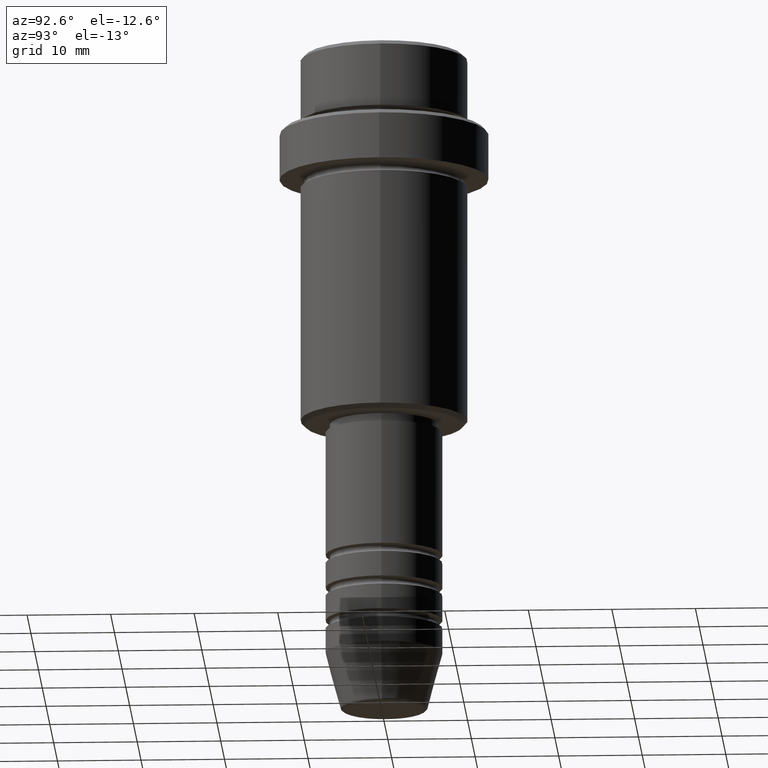
[diagram: clean part render]
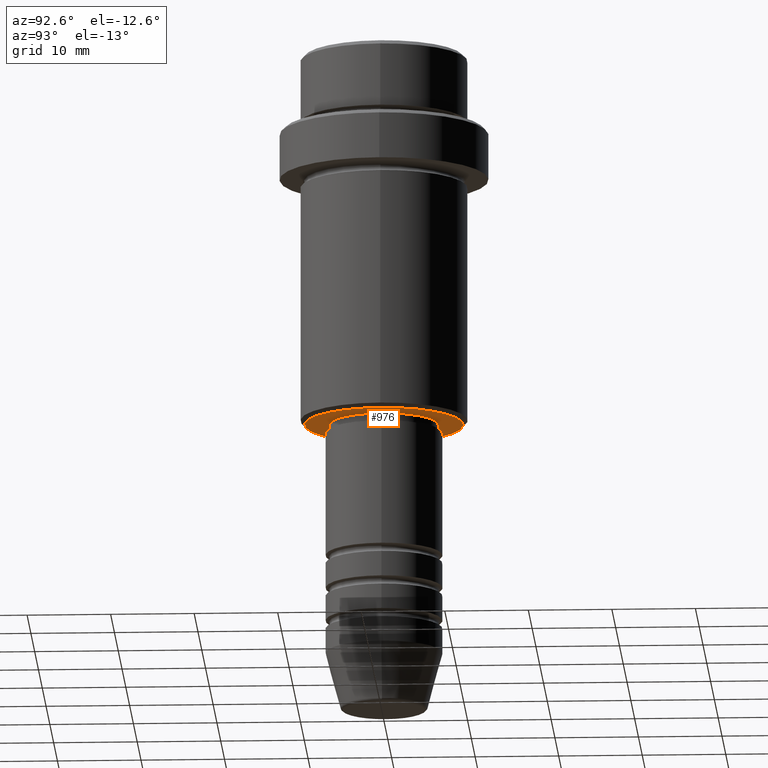
[diagram: same view with one face highlighted and labeled with its STEP entity id]
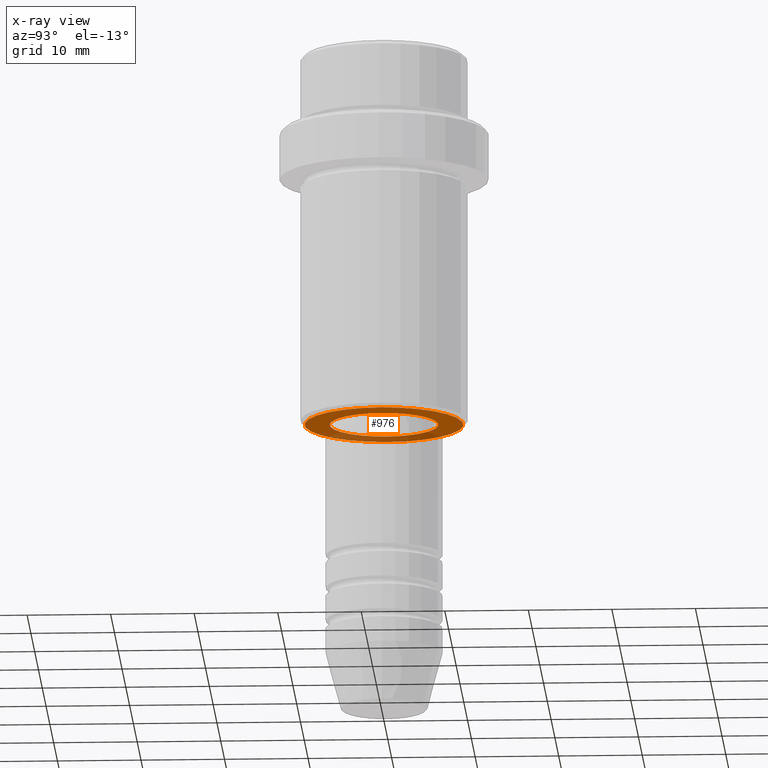
[diagram: x-ray of the same camera — body ghosted, the highlighted face saturated]
A machine part, auxiliary view. The second image highlights one B-rep face of the part: STEP entity #976.
The next image is the same camera in x-ray: the body ghosted, the highlighted face saturated — about 26% of this face is hidden behind the body in this view.
In plain terms, the highlighted planar face has unit normal (0, 0, -1).
Its self-contained STEP definition (entity closure, byte-faithful):
#52 = EDGE_CURVE ( 'NONE', #1149, #1021, #126, .T. ) ;
#124 = DIRECTION ( 'NONE',  ( -1.000000000000000000, 0.000000000000000000, -0.000000000000000000 ) ) ;
#126 = CIRCLE ( 'NONE', #802, 6.499999999999994671 ) ;
#197 = CARTESIAN_POINT ( 'NONE',  ( 0.000000000000000000, 0.000000000000000000, -45.00000000000000000 ) ) ;
#204 = EDGE_CURVE ( 'NONE', #584, #239, #1221, .T. ) ;
#217 = DIRECTION ( 'NONE',  ( -0.000000000000000000, -0.000000000000000000, 1.000000000000000000 ) ) ;
#235 = FACE_BOUND ( 'NONE', #1332, .T. ) ;
#238 = CARTESIAN_POINT ( 'NONE',  ( 9.500000000000008882, 0.000000000000000000, -45.00000000000000000 ) ) ;
#239 = VERTEX_POINT ( 'NONE', #238 ) ;
#241 = PLANE ( 'NONE',  #785 ) ;
#249 = AXIS2_PLACEMENT_3D ( 'NONE', #616, #367, #608 ) ;
#278 = EDGE_CURVE ( 'NONE', #1021, #1149, #480, .T. ) ;
#358 = CARTESIAN_POINT ( 'NONE',  ( 0.000000000000000000, 0.000000000000000000, -45.00000000000000000 ) ) ;
#367 = DIRECTION ( 'NONE',  ( 0.000000000000000000, 0.000000000000000000, -1.000000000000000000 ) ) ;
#377 = ORIENTED_EDGE ( 'NONE', *, *, #52, .T. ) ;
#480 = CIRCLE ( 'NONE', #708, 6.499999999999994671 ) ;
#511 = EDGE_LOOP ( 'NONE', ( #964, #843 ) ) ;
#524 = DIRECTION ( 'NONE',  ( 1.000000000000000000, 0.000000000000000000, 0.000000000000000000 ) ) ;
#581 = DIRECTION ( 'NONE',  ( 1.000000000000000000, 0.000000000000000000, 0.000000000000000000 ) ) ;
#584 = VERTEX_POINT ( 'NONE', #832 ) ;
#608 = DIRECTION ( 'NONE',  ( -1.000000000000000000, 0.000000000000000000, 0.000000000000000000 ) ) ;
#616 = CARTESIAN_POINT ( 'NONE',  ( 0.000000000000000000, 0.000000000000000000, -45.00000000000000000 ) ) ;
#658 = ORIENTED_EDGE ( 'NONE', *, *, #278, .T. ) ;
#686 = CARTESIAN_POINT ( 'NONE',  ( 0.000000000000000000, 0.000000000000000000, -45.00000000000000000 ) ) ;
#708 = AXIS2_PLACEMENT_3D ( 'NONE', #358, #795, #581 ) ;
#785 = AXIS2_PLACEMENT_3D ( 'NONE', #790, #1227, #124 ) ;
#790 = CARTESIAN_POINT ( 'NONE',  ( 0.000000000000000000, 10.00000000000000000, -45.00000000000000000 ) ) ;
#795 = DIRECTION ( 'NONE',  ( -0.000000000000000000, -0.000000000000000000, 1.000000000000000000 ) ) ;
#799 = CIRCLE ( 'NONE', #249, 9.500000000000008882 ) ;
#802 = AXIS2_PLACEMENT_3D ( 'NONE', #197, #217, #524 ) ;
#832 = CARTESIAN_POINT ( 'NONE',  ( -9.500000000000008882, 1.194030629168669864E-15, -45.00000000000000000 ) ) ;
#843 = ORIENTED_EDGE ( 'NONE', *, *, #204, .T. ) ;
#894 = CARTESIAN_POINT ( 'NONE',  ( -6.499999999999994671, 7.960204194457788574E-16, -45.00000000000000000 ) ) ;
#903 = DIRECTION ( 'NONE',  ( 0.000000000000000000, 0.000000000000000000, -1.000000000000000000 ) ) ;
#912 = CARTESIAN_POINT ( 'NONE',  ( 6.499999999999994671, 0.000000000000000000, -45.00000000000000000 ) ) ;
#914 = EDGE_CURVE ( 'NONE', #239, #584, #799, .T. ) ;
#939 = AXIS2_PLACEMENT_3D ( 'NONE', #686, #903, #1000 ) ;
#964 = ORIENTED_EDGE ( 'NONE', *, *, #914, .T. ) ;
#976 = ADVANCED_FACE ( 'NONE', ( #1109, #235 ), #241, .T. ) ;
#1000 = DIRECTION ( 'NONE',  ( -1.000000000000000000, 0.000000000000000000, 0.000000000000000000 ) ) ;
#1021 = VERTEX_POINT ( 'NONE', #894 ) ;
#1109 = FACE_OUTER_BOUND ( 'NONE', #511, .T. ) ;
#1149 = VERTEX_POINT ( 'NONE', #912 ) ;
#1221 = CIRCLE ( 'NONE', #939, 9.500000000000008882 ) ;
#1227 = DIRECTION ( 'NONE',  ( 0.000000000000000000, 0.000000000000000000, -1.000000000000000000 ) ) ;
#1332 = EDGE_LOOP ( 'NONE', ( #377, #658 ) ) ;